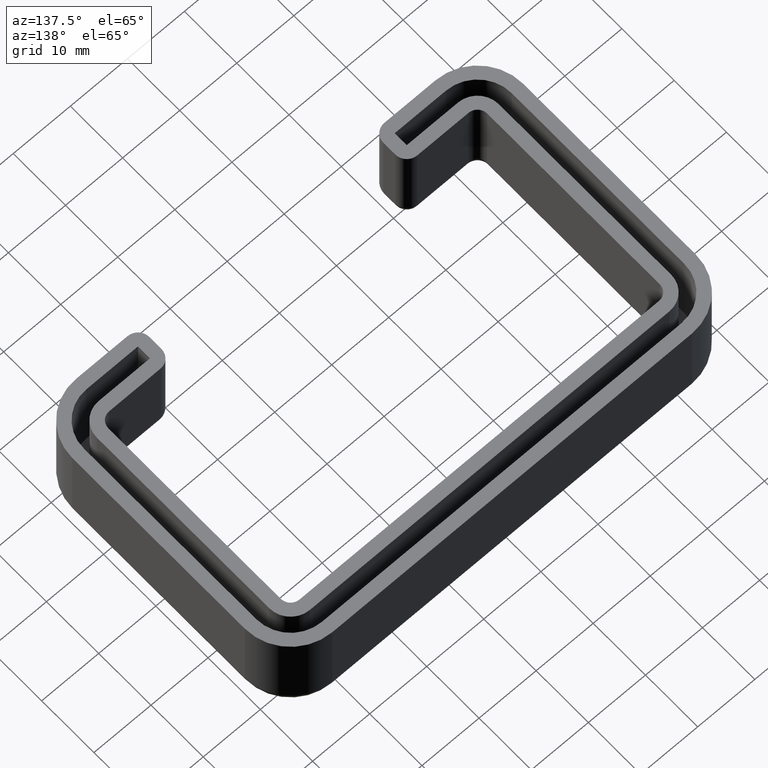
[diagram: clean part render]
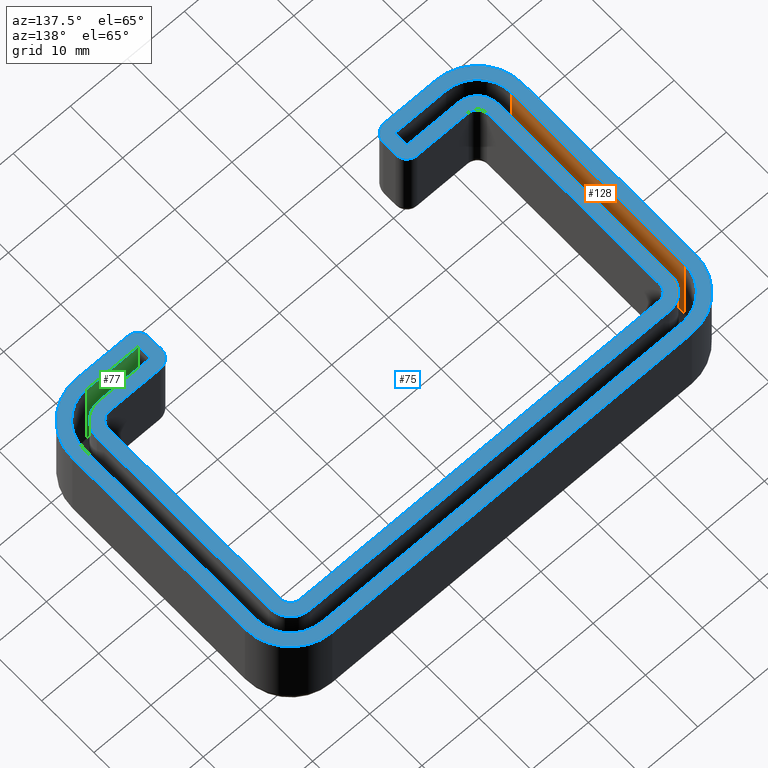
[diagram: same view with three faces highlighted in distinct colors, each labeled with its STEP entity id]
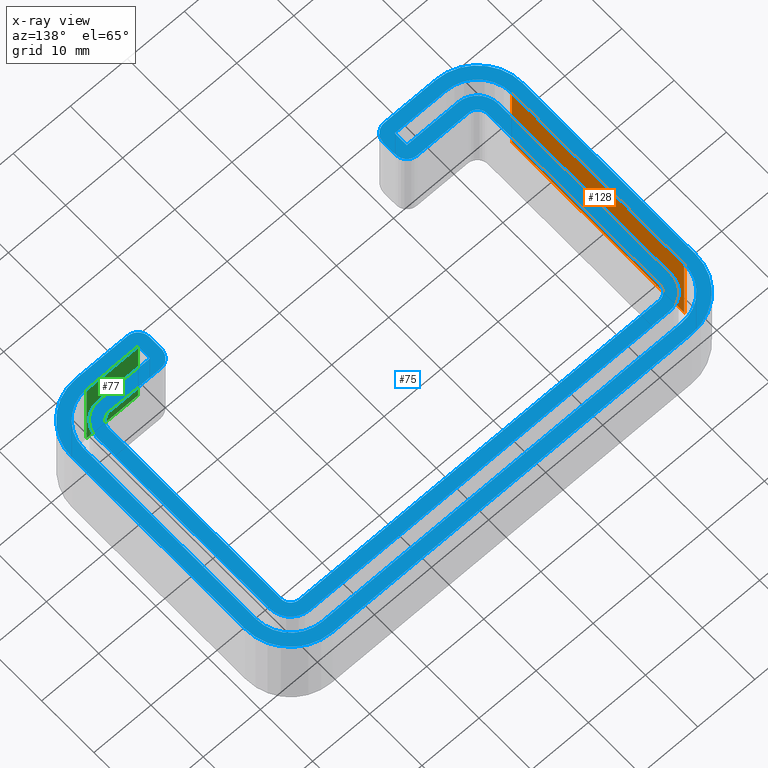
[diagram: x-ray of the same camera — body ghosted, the three highlighted faces saturated]
A machine part, auxiliary view with three faces highlighted in distinct colors.
The next image is the same camera in x-ray (body ghosted, the three faces saturated) — at least one of them is partly hidden behind the body in this view.
Their STEP definitions:

[orange] entity #128 — the highlighted planar face has unit normal (-1, 0, 0).
#128 = ADVANCED_FACE( '', ( #254 ), #255, .F. );
#254 = FACE_OUTER_BOUND( '', #397, .T. );
#255 = PLANE( '', #398 );
#397 = EDGE_LOOP( '', ( #872, #873, #874, #875 ) );
#398 = AXIS2_PLACEMENT_3D( '', #876, #877, #878 );
#872 = ORIENTED_EDGE( '', *, *, #1157, .T. );
#873 = ORIENTED_EDGE( '', *, *, #1065, .T. );
#874 = ORIENTED_EDGE( '', *, *, #1158, .T. );
#875 = ORIENTED_EDGE( '', *, *, #1034, .F. );
#876 = CARTESIAN_POINT( '', ( -37.5000000000000, 22.5000000000000, -15.0000000000000 ) );
#877 = DIRECTION( '', ( -1.00000000000000, 0.000000000000000, 0.000000000000000 ) );
#878 = DIRECTION( '', ( 0.000000000000000, 0.000000000000000, 1.00000000000000 ) );
#1034 = EDGE_CURVE( '', #1245, #1247, #1248, .T. );
#1065 = EDGE_CURVE( '', #1305, #1303, #1306, .T. );
#1157 = EDGE_CURVE( '', #1245, #1305, #1441, .T. );
#1158 = EDGE_CURVE( '', #1303, #1247, #1442, .T. );
#1245 = VERTEX_POINT( '', #1548 );
#1247 = VERTEX_POINT( '', #1550 );
#1248 = LINE( '', #1551, #1552 );
#1303 = VERTEX_POINT( '', #1627 );
#1305 = VERTEX_POINT( '', #1629 );
#1306 = LINE( '', #1630, #1631 );
#1441 = LINE( '', #1812, #1813 );
#1442 = LINE( '', #1814, #1815 );
#1548 = CARTESIAN_POINT( '', ( -37.5000000000000, -16.5000000000000, 1.73472347597681E-015 ) );
#1550 = CARTESIAN_POINT( '', ( -37.5000000000000, 16.5000000000000, 1.73472347597681E-015 ) );
#1551 = CARTESIAN_POINT( '', ( -37.5000000000000, -16.5000000000000, 1.73472347597681E-015 ) );
#1552 = VECTOR( '', #1916, 1000.00000000000 );
#1627 = CARTESIAN_POINT( '', ( -37.5000000000000, 16.5000000000000, -15.0000000000000 ) );
#1629 = CARTESIAN_POINT( '', ( -37.5000000000000, -16.5000000000000, -15.0000000000000 ) );
#1630 = CARTESIAN_POINT( '', ( -37.5000000000000, -22.5000000000000, -15.0000000000000 ) );
#1631 = VECTOR( '', #1967, 1000.00000000000 );
#1812 = CARTESIAN_POINT( '', ( -37.5000000000000, -16.5000000000000, -15.0000000000000 ) );
#1813 = VECTOR( '', #2149, 1000.00000000000 );
#1814 = CARTESIAN_POINT( '', ( -37.5000000000000, 16.5000000000000, -15.0000000000000 ) );
#1815 = VECTOR( '', #2150, 1000.00000000000 );
#1916 = DIRECTION( '', ( 0.000000000000000, 1.00000000000000, 0.000000000000000 ) );
#1967 = DIRECTION( '', ( 0.000000000000000, 1.00000000000000, 0.000000000000000 ) );
#2149 = DIRECTION( '', ( 0.000000000000000, 0.000000000000000, -1.00000000000000 ) );
#2150 = DIRECTION( '', ( 0.000000000000000, 0.000000000000000, 1.00000000000000 ) );

[blue] entity #75 — the highlighted planar face has unit normal (0, 0, -1).
#75 = ADVANCED_FACE( '', ( #147, #148 ), #149, .F. );
#147 = FACE_OUTER_BOUND( '', #290, .T. );
#148 = FACE_BOUND( '', #291, .T. );
#149 = PLANE( '', #292 );
#290 = EDGE_LOOP( '', ( #433, #434, #435, #436, #437, #438, #439, #440, #441, #442, #443, #444, #445, #446, #447, #448, #449, #450, #451, #452, #453, #454, #455, #456 ) );
#291 = EDGE_LOOP( '', ( #457, #458, #459, #460, #461, #462, #463, #464, #465, #466, #467, #468, #469, #470, #471, #472, #473, #474, #475, #476 ) );
#292 = AXIS2_PLACEMENT_3D( '', #477, #478, #479 );
#433 = ORIENTED_EDGE( '', *, *, #998, .F. );
#434 = ORIENTED_EDGE( '', *, *, #999, .T. );
#435 = ORIENTED_EDGE( '', *, *, #1000, .F. );
#436 = ORIENTED_EDGE( '', *, *, #1001, .T. );
#437 = ORIENTED_EDGE( '', *, *, #1002, .F. );
#438 = ORIENTED_EDGE( '', *, *, #1003, .F. );
#439 = ORIENTED_EDGE( '', *, *, #1004, .F. );
#440 = ORIENTED_EDGE( '', *, *, #1005, .F. );
#441 = ORIENTED_EDGE( '', *, *, #1006, .F. );
#442 = ORIENTED_EDGE( '', *, *, #1007, .F. );
#443 = ORIENTED_EDGE( '', *, *, #1008, .F. );
#444 = ORIENTED_EDGE( '', *, *, #1009, .F. );
#445 = ORIENTED_EDGE( '', *, *, #1010, .F. );
#446 = ORIENTED_EDGE( '', *, *, #1011, .T. );
#447 = ORIENTED_EDGE( '', *, *, #1012, .F. );
#448 = ORIENTED_EDGE( '', *, *, #1013, .T. );
#449 = ORIENTED_EDGE( '', *, *, #1014, .F. );
#450 = ORIENTED_EDGE( '', *, *, #1015, .F. );
#451 = ORIENTED_EDGE( '', *, *, #1016, .F. );
#452 = ORIENTED_EDGE( '', *, *, #1017, .F. );
#453 = ORIENTED_EDGE( '', *, *, #1018, .F. );
#454 = ORIENTED_EDGE( '', *, *, #1019, .F. );
#455 = ORIENTED_EDGE( '', *, *, #1020, .F. );
#456 = ORIENTED_EDGE( '', *, *, #1021, .F. );
#457 = ORIENTED_EDGE( '', *, *, #1022, .F. );
#458 = ORIENTED_EDGE( '', *, *, #1023, .F. );
#459 = ORIENTED_EDGE( '', *, *, #1024, .F. );
#460 = ORIENTED_EDGE( '', *, *, #1025, .F. );
#461 = ORIENTED_EDGE( '', *, *, #1026, .F. );
#462 = ORIENTED_EDGE( '', *, *, #1027, .F. );
#463 = ORIENTED_EDGE( '', *, *, #1028, .F. );
#464 = ORIENTED_EDGE( '', *, *, #1029, .F. );
#465 = ORIENTED_EDGE( '', *, *, #1030, .F. );
#466 = ORIENTED_EDGE( '', *, *, #1031, .F. );
#467 = ORIENTED_EDGE( '', *, *, #1032, .T. );
#468 = ORIENTED_EDGE( '', *, *, #1033, .T. );
#469 = ORIENTED_EDGE( '', *, *, #1034, .T. );
#470 = ORIENTED_EDGE( '', *, *, #1035, .T. );
#471 = ORIENTED_EDGE( '', *, *, #1036, .T. );
#472 = ORIENTED_EDGE( '', *, *, #1037, .T. );
#473 = ORIENTED_EDGE( '', *, *, #1038, .T. );
#474 = ORIENTED_EDGE( '', *, *, #1039, .T. );
#475 = ORIENTED_EDGE( '', *, *, #1040, .T. );
#476 = ORIENTED_EDGE( '', *, *, #1041, .F. );
#477 = CARTESIAN_POINT( '', ( -31.5000000000000, -16.5000000000000, 1.73472347597681E-015 ) );
#478 = DIRECTION( '', ( 0.000000000000000, 0.000000000000000, -1.00000000000000 ) );
#479 = DIRECTION( '', ( 1.00000000000000, 0.000000000000000, 0.000000000000000 ) );
#998 = EDGE_CURVE( '', #1174, #1175, #1176, .T. );
#999 = EDGE_CURVE( '', #1174, #1177, #1178, .F. );
#1000 = EDGE_CURVE( '', #1179, #1177, #1180, .T. );
#1001 = EDGE_CURVE( '', #1179, #1181, #1182, .F. );
#1002 = EDGE_CURVE( '', #1183, #1181, #1184, .T. );
#1003 = EDGE_CURVE( '', #1185, #1183, #1186, .T. );
#1004 = EDGE_CURVE( '', #1187, #1185, #1188, .T. );
#1005 = EDGE_CURVE( '', #1189, #1187, #1190, .T. );
#1006 = EDGE_CURVE( '', #1191, #1189, #1192, .T. );
#1007 = EDGE_CURVE( '', #1193, #1191, #1194, .T. );
#1008 = EDGE_CURVE( '', #1195, #1193, #1196, .T. );
#1009 = EDGE_CURVE( '', #1197, #1195, #1198, .T. );
#1010 = EDGE_CURVE( '', #1199, #1197, #1200, .T. );
#1011 = EDGE_CURVE( '', #1199, #1201, #1202, .F. );
#1012 = EDGE_CURVE( '', #1203, #1201, #1204, .T. );
#1013 = EDGE_CURVE( '', #1203, #1205, #1206, .F. );
#1014 = EDGE_CURVE( '', #1207, #1205, #1208, .T. );
#1015 = EDGE_CURVE( '', #1209, #1207, #1210, .T. );
#1016 = EDGE_CURVE( '', #1211, #1209, #1212, .T. );
#1017 = EDGE_CURVE( '', #1213, #1211, #1214, .T. );
#1018 = EDGE_CURVE( '', #1215, #1213, #1216, .T. );
#1019 = EDGE_CURVE( '', #1217, #1215, #1218, .T. );
#1020 = EDGE_CURVE( '', #1219, #1217, #1220, .T. );
#1021 = EDGE_CURVE( '', #1175, #1219, #1221, .T. );
#1022 = EDGE_CURVE( '', #1222, #1223, #1224, .T. );
#1023 = EDGE_CURVE( '', #1225, #1222, #1226, .T. );
#1024 = EDGE_CURVE( '', #1227, #1225, #1228, .T. );
#1025 = EDGE_CURVE( '', #1229, #1227, #1230, .T. );
#1026 = EDGE_CURVE( '', #1231, #1229, #1232, .T. );
#1027 = EDGE_CURVE( '', #1233, #1231, #1234, .T. );
#1028 = EDGE_CURVE( '', #1235, #1233, #1236, .T. );
#1029 = EDGE_CURVE( '', #1237, #1235, #1238, .T. );
#1030 = EDGE_CURVE( '', #1239, #1237, #1240, .T. );
#1031 = EDGE_CURVE( '', #1241, #1239, #1242, .T. );
#1032 = EDGE_CURVE( '', #1241, #1243, #1244, .T. );
#1033 = EDGE_CURVE( '', #1243, #1245, #1246, .T. );
#1034 = EDGE_CURVE( '', #1245, #1247, #1248, .T. );
#1035 = EDGE_CURVE( '', #1247, #1249, #1250, .T. );
#1036 = EDGE_CURVE( '', #1249, #1251, #1252, .T. );
#1037 = EDGE_CURVE( '', #1251, #1253, #1254, .T. );
#1038 = EDGE_CURVE( '', #1253, #1255, #1256, .T. );
#1039 = EDGE_CURVE( '', #1255, #1257, #1258, .T. );
#1040 = EDGE_CURVE( '', #1257, #1259, #1260, .T. );
#1041 = EDGE_CURVE( '', #1223, #1259, #1261, .T. );
#1174 = VERTEX_POINT( '', #1458 );
#1175 = VERTEX_POINT( '', #1459 );
#1176 = LINE( '', #1460, #1461 );
#1177 = VERTEX_POINT( '', #1462 );
#1178 = CIRCLE( '', #1463, 2.00000000000000 );
#1179 = VERTEX_POINT( '', #1464 );
#1180 = LINE( '', #1465, #1466 );
#1181 = VERTEX_POINT( '', #1467 );
#1182 = CIRCLE( '', #1468, 2.00000000000000 );
#1183 = VERTEX_POINT( '', #1469 );
#1184 = LINE( '', #1470, #1471 );
#1185 = VERTEX_POINT( '', #1472 );
#1186 = CIRCLE( '', #1473, 1.70000000000000 );
#1187 = VERTEX_POINT( '', #1474 );
#1188 = LINE( '', #1475, #1476 );
#1189 = VERTEX_POINT( '', #1477 );
#1190 = CIRCLE( '', #1478, 1.70000000000000 );
#1191 = VERTEX_POINT( '', #1479 );
#1192 = LINE( '', #1480, #1481 );
#1193 = VERTEX_POINT( '', #1482 );
#1194 = CIRCLE( '', #1483, 1.70000000000000 );
#1195 = VERTEX_POINT( '', #1484 );
#1196 = LINE( '', #1485, #1486 );
#1197 = VERTEX_POINT( '', #1487 );
#1198 = CIRCLE( '', #1488, 1.70000000000000 );
#1199 = VERTEX_POINT( '', #1489 );
#1200 = LINE( '', #1490, #1491 );
#1201 = VERTEX_POINT( '', #1492 );
#1202 = CIRCLE( '', #1493, 2.00000000000000 );
#1203 = VERTEX_POINT( '', #1494 );
#1204 = LINE( '', #1495, #1496 );
#1205 = VERTEX_POINT( '', #1497 );
#1206 = CIRCLE( '', #1498, 2.00000000000000 );
#1207 = VERTEX_POINT( '', #1499 );
#1208 = LINE( '', #1500, #1501 );
#1209 = VERTEX_POINT( '', #1502 );
#1210 = CIRCLE( '', #1503, 8.00000000000000 );
#1211 = VERTEX_POINT( '', #1504 );
#1212 = LINE( '', #1505, #1506 );
#1213 = VERTEX_POINT( '', #1507 );
#1214 = CIRCLE( '', #1508, 8.00000000000001 );
#1215 = VERTEX_POINT( '', #1509 );
#1216 = LINE( '', #1510, #1511 );
#1217 = VERTEX_POINT( '', #1512 );
#1218 = CIRCLE( '', #1513, 8.00000000000001 );
#1219 = VERTEX_POINT( '', #1514 );
#1220 = LINE( '', #1515, #1516 );
#1221 = CIRCLE( '', #1517, 8.00000000000000 );
#1222 = VERTEX_POINT( '', #1518 );
#1223 = VERTEX_POINT( '', #1519 );
#1224 = LINE( '', #1520, #1521 );
#1225 = VERTEX_POINT( '', #1522 );
#1226 = CIRCLE( '', #1523, 3.70000000000000 );
#1227 = VERTEX_POINT( '', #1524 );
#1228 = LINE( '', #1525, #1526 );
#1229 = VERTEX_POINT( '', #1527 );
#1230 = CIRCLE( '', #1528, 3.70000000000000 );
#1231 = VERTEX_POINT( '', #1529 );
#1232 = LINE( '', #1530, #1531 );
#1233 = VERTEX_POINT( '', #1532 );
#1234 = CIRCLE( '', #1533, 3.70000000000000 );
#1235 = VERTEX_POINT( '', #1534 );
#1236 = LINE( '', #1535, #1536 );
#1237 = VERTEX_POINT( '', #1537 );
#1238 = CIRCLE( '', #1538, 3.70000000000000 );
#1239 = VERTEX_POINT( '', #1539 );
#1240 = LINE( '', #1540, #1541 );
#1241 = VERTEX_POINT( '', #1542 );
#1242 = LINE( '', #1543, #1544 );
#1243 = VERTEX_POINT( '', #1545 );
#1244 = LINE( '', #1546, #1547 );
#1245 = VERTEX_POINT( '', #1548 );
#1246 = CIRCLE( '', #1549, 6.00000000000000 );
#1247 = VERTEX_POINT( '', #1550 );
#1248 = LINE( '', #1551, #1552 );
#1249 = VERTEX_POINT( '', #1553 );
#1250 = CIRCLE( '', #1554, 6.00000000000000 );
#1251 = VERTEX_POINT( '', #1555 );
#1252 = LINE( '', #1556, #1557 );
#1253 = VERTEX_POINT( '', #1558 );
#1254 = CIRCLE( '', #1559, 6.00000000000000 );
#1255 = VERTEX_POINT( '', #1560 );
#1256 = LINE( '', #1561, #1562 );
#1257 = VERTEX_POINT( '', #1563 );
#1258 = CIRCLE( '', #1564, 6.00000000000000 );
#1259 = VERTEX_POINT( '', #1565 );
#1260 = LINE( '', #1566, #1567 );
#1261 = LINE( '', #1568, #1569 );
#1458 = CARTESIAN_POINT( '', ( -22.5000000000000, -24.5000000000000, 1.73472347597681E-015 ) );
#1459 = CARTESIAN_POINT( '', ( -31.5000000000000, -24.5000000000000, 1.73472347597681E-015 ) );
#1460 = CARTESIAN_POINT( '', ( -20.5000000000000, -24.5000000000000, 1.73472347597681E-015 ) );
#1461 = VECTOR( '', #1846, 1000.00000000000 );
#1462 = CARTESIAN_POINT( '', ( -20.5000000000000, -22.5000000000000, 1.73472347597681E-015 ) );
#1463 = AXIS2_PLACEMENT_3D( '', #1847, #1848, #1849 );
#1464 = CARTESIAN_POINT( '', ( -20.5000000000000, -20.1999999999999, 1.73472347597681E-015 ) );
#1465 = CARTESIAN_POINT( '', ( -20.5000000000000, -18.1999999999999, 1.73472347597681E-015 ) );
#1466 = VECTOR( '', #1850, 1000.00000000000 );
#1467 = CARTESIAN_POINT( '', ( -22.5000000000000, -18.1999999999999, 1.73472347597681E-015 ) );
#1468 = AXIS2_PLACEMENT_3D( '', #1851, #1852, #1853 );
#1469 = CARTESIAN_POINT( '', ( -31.5000000000002, -18.1999999999999, 1.73472347597681E-015 ) );
#1470 = CARTESIAN_POINT( '', ( -31.5000000000002, -18.1999999999999, 1.73472347597681E-015 ) );
#1471 = VECTOR( '', #1854, 1000.00000000000 );
#1472 = CARTESIAN_POINT( '', ( -33.2000000000002, -16.4999999999999, 1.73472347597681E-015 ) );
#1473 = AXIS2_PLACEMENT_3D( '', #1855, #1856, #1857 );
#1474 = CARTESIAN_POINT( '', ( -33.2000000000002, 16.5000000000001, 1.73472347597681E-015 ) );
#1475 = CARTESIAN_POINT( '', ( -33.2000000000002, 16.5000000000001, 1.73472347597681E-015 ) );
#1476 = VECTOR( '', #1858, 1000.00000000000 );
#1477 = CARTESIAN_POINT( '', ( -31.5000000000002, 18.2000000000001, 1.73472347597681E-015 ) );
#1478 = AXIS2_PLACEMENT_3D( '', #1859, #1860, #1861 );
#1479 = CARTESIAN_POINT( '', ( 31.4999999999998, 18.2000000000001, 1.73472347597681E-015 ) );
#1480 = CARTESIAN_POINT( '', ( 31.4999999999998, 18.2000000000001, 1.73472347597681E-015 ) );
#1481 = VECTOR( '', #1862, 1000.00000000000 );
#1482 = CARTESIAN_POINT( '', ( 33.1999999999998, 16.5000000000001, 1.73472347597681E-015 ) );
#1483 = AXIS2_PLACEMENT_3D( '', #1863, #1864, #1865 );
#1484 = CARTESIAN_POINT( '', ( 33.1999999999998, -16.4999999999999, 1.73472347597681E-015 ) );
#1485 = CARTESIAN_POINT( '', ( 33.1999999999998, -16.4999999999999, 1.73472347597681E-015 ) );
#1486 = VECTOR( '', #1866, 1000.00000000000 );
#1487 = CARTESIAN_POINT( '', ( 31.4999999999998, -18.1999999999999, 1.73472347597681E-015 ) );
#1488 = AXIS2_PLACEMENT_3D( '', #1867, #1868, #1869 );
#1489 = CARTESIAN_POINT( '', ( 22.5000000000000, -18.1999999999999, 1.73472347597681E-015 ) );
#1490 = CARTESIAN_POINT( '', ( 20.5000000000000, -18.1999999999999, 1.73472347597681E-015 ) );
#1491 = VECTOR( '', #1870, 1000.00000000000 );
#1492 = CARTESIAN_POINT( '', ( 20.5000000000000, -20.1999999999999, 1.73472347597681E-015 ) );
#1493 = AXIS2_PLACEMENT_3D( '', #1871, #1872, #1873 );
#1494 = CARTESIAN_POINT( '', ( 20.5000000000000, -22.5000000000000, 1.73472347597681E-015 ) );
#1495 = CARTESIAN_POINT( '', ( 20.5000000000000, -24.5000000000000, 1.73472347597681E-015 ) );
#1496 = VECTOR( '', #1874, 1000.00000000000 );
#1497 = CARTESIAN_POINT( '', ( 22.5000000000000, -24.5000000000000, 1.73472347597681E-015 ) );
#1498 = AXIS2_PLACEMENT_3D( '', #1875, #1876, #1877 );
#1499 = CARTESIAN_POINT( '', ( 31.5000000000000, -24.5000000000000, 1.73472347597681E-015 ) );
#1500 = CARTESIAN_POINT( '', ( 31.5000000000000, -24.5000000000000, 1.73472347597681E-015 ) );
#1501 = VECTOR( '', #1878, 1000.00000000000 );
#1502 = CARTESIAN_POINT( '', ( 39.5000000000000, -16.5000000000000, 1.73472347597681E-015 ) );
#1503 = AXIS2_PLACEMENT_3D( '', #1879, #1880, #1881 );
#1504 = CARTESIAN_POINT( '', ( 39.5000000000000, 16.5000000000000, 1.73472347597681E-015 ) );
#1505 = CARTESIAN_POINT( '', ( 39.5000000000000, 16.5000000000000, 1.73472347597681E-015 ) );
#1506 = VECTOR( '', #1882, 1000.00000000000 );
#1507 = CARTESIAN_POINT( '', ( 31.5000000000000, 24.5000000000000, 1.73472347597681E-015 ) );
#1508 = AXIS2_PLACEMENT_3D( '', #1883, #1884, #1885 );
#1509 = CARTESIAN_POINT( '', ( -31.5000000000000, 24.5000000000000, 1.73472347597681E-015 ) );
#1510 = CARTESIAN_POINT( '', ( -31.5000000000000, 24.5000000000000, 1.73472347597681E-015 ) );
#1511 = VECTOR( '', #1886, 1000.00000000000 );
#1512 = CARTESIAN_POINT( '', ( -39.5000000000000, 16.5000000000000, 1.73472347597681E-015 ) );
#1513 = AXIS2_PLACEMENT_3D( '', #1887, #1888, #1889 );
#1514 = CARTESIAN_POINT( '', ( -39.5000000000000, -16.5000000000000, 1.73472347597681E-015 ) );
#1515 = CARTESIAN_POINT( '', ( -39.5000000000000, -16.5000000000000, 1.73472347597681E-015 ) );
#1516 = VECTOR( '', #1890, 1000.00000000000 );
#1517 = AXIS2_PLACEMENT_3D( '', #1891, #1892, #1893 );
#1518 = CARTESIAN_POINT( '', ( 31.4999999999998, -20.1999999999999, 0.000000000000000 ) );
#1519 = CARTESIAN_POINT( '', ( 22.5000000000000, -20.1999999999999, 0.000000000000000 ) );
#1520 = CARTESIAN_POINT( '', ( -31.5000000000000, -20.1999999999999, 1.73472347597681E-015 ) );
#1521 = VECTOR( '', #1894, 1000.00000000000 );
#1522 = CARTESIAN_POINT( '', ( 35.1999999999998, -16.4999999999999, 0.000000000000000 ) );
#1523 = AXIS2_PLACEMENT_3D( '', #1895, #1896, #1897 );
#1524 = CARTESIAN_POINT( '', ( 35.1999999999998, 16.5000000000001, 0.000000000000000 ) );
#1525 = CARTESIAN_POINT( '', ( 35.1999999999998, -16.5000000000000, 1.73472347597681E-015 ) );
#1526 = VECTOR( '', #1898, 1000.00000000000 );
#1527 = CARTESIAN_POINT( '', ( 31.4999999999998, 20.2000000000001, 0.000000000000000 ) );
#1528 = AXIS2_PLACEMENT_3D( '', #1899, #1900, #1901 );
#1529 = CARTESIAN_POINT( '', ( -31.5000000000002, 20.2000000000001, 0.000000000000000 ) );
#1530 = CARTESIAN_POINT( '', ( -31.5000000000000, 20.2000000000001, 1.73472347597681E-015 ) );
#1531 = VECTOR( '', #1902, 1000.00000000000 );
#1532 = CARTESIAN_POINT( '', ( -35.2000000000002, 16.5000000000001, 0.000000000000000 ) );
#1533 = AXIS2_PLACEMENT_3D( '', #1903, #1904, #1905 );
#1534 = CARTESIAN_POINT( '', ( -35.2000000000002, -16.4999999999999, 0.000000000000000 ) );
#1535 = CARTESIAN_POINT( '', ( -35.2000000000002, -16.5000000000000, 1.73472347597681E-015 ) );
#1536 = VECTOR( '', #1906, 1000.00000000000 );
#1537 = CARTESIAN_POINT( '', ( -31.5000000000002, -20.1999999999999, 0.000000000000000 ) );
#1538 = AXIS2_PLACEMENT_3D( '', #1907, #1908, #1909 );
#1539 = CARTESIAN_POINT( '', ( -22.5000000000000, -20.1999999999999, 0.000000000000000 ) );
#1540 = CARTESIAN_POINT( '', ( -31.5000000000000, -20.1999999999999, 1.73472347597681E-015 ) );
#1541 = VECTOR( '', #1910, 1000.00000000000 );
#1542 = CARTESIAN_POINT( '', ( -22.5000000000000, -22.5000000000000, 0.000000000000000 ) );
#1543 = CARTESIAN_POINT( '', ( -22.5000000000000, -16.5000000000000, 1.73472347597681E-015 ) );
#1544 = VECTOR( '', #1911, 1000.00000000000 );
#1545 = CARTESIAN_POINT( '', ( -31.5000000000000, -22.5000000000000, 1.73472347597681E-015 ) );
#1546 = CARTESIAN_POINT( '', ( -31.5000000000000, -22.5000000000000, 1.73472347597681E-015 ) );
#1547 = VECTOR( '', #1912, 1000.00000000000 );
#1548 = CARTESIAN_POINT( '', ( -37.5000000000000, -16.5000000000000, 1.73472347597681E-015 ) );
#1549 = AXIS2_PLACEMENT_3D( '', #1913, #1914, #1915 );
#1550 = CARTESIAN_POINT( '', ( -37.5000000000000, 16.5000000000000, 1.73472347597681E-015 ) );
#1551 = CARTESIAN_POINT( '', ( -37.5000000000000, -16.5000000000000, 1.73472347597681E-015 ) );
#1552 = VECTOR( '', #1916, 1000.00000000000 );
#1553 = CARTESIAN_POINT( '', ( -31.5000000000000, 22.5000000000000, 1.73472347597681E-015 ) );
#1554 = AXIS2_PLACEMENT_3D( '', #1917, #1918, #1919 );
#1555 = CARTESIAN_POINT( '', ( 31.5000000000000, 22.5000000000000, 1.73472347597681E-015 ) );
#1556 = CARTESIAN_POINT( '', ( -31.5000000000000, 22.5000000000000, 1.73472347597681E-015 ) );
#1557 = VECTOR( '', #1920, 1000.00000000000 );
#1558 = CARTESIAN_POINT( '', ( 37.5000000000000, 16.5000000000000, 1.73472347597681E-015 ) );
#1559 = AXIS2_PLACEMENT_3D( '', #1921, #1922, #1923 );
#1560 = CARTESIAN_POINT( '', ( 37.5000000000000, -16.5000000000000, 1.73472347597681E-015 ) );
#1561 = CARTESIAN_POINT( '', ( 37.5000000000000, -16.5000000000000, 1.73472347597681E-015 ) );
#1562 = VECTOR( '', #1924, 1000.00000000000 );
#1563 = CARTESIAN_POINT( '', ( 31.5000000000000, -22.5000000000000, 1.73472347597681E-015 ) );
#1564 = AXIS2_PLACEMENT_3D( '', #1925, #1926, #1927 );
#1565 = CARTESIAN_POINT( '', ( 22.5000000000000, -22.5000000000000, 0.000000000000000 ) );
#1566 = CARTESIAN_POINT( '', ( -31.5000000000000, -22.5000000000000, 1.73472347597681E-015 ) );
#1567 = VECTOR( '', #1928, 1000.00000000000 );
#1568 = CARTESIAN_POINT( '', ( 22.5000000000000, -16.5000000000000, 1.73472347597681E-015 ) );
#1569 = VECTOR( '', #1929, 1000.00000000000 );
#1846 = DIRECTION( '', ( -1.00000000000000, 0.000000000000000, 0.000000000000000 ) );
#1847 = CARTESIAN_POINT( '', ( -22.5000000000000, -22.5000000000000, 1.73472347597681E-015 ) );
#1848 = DIRECTION( '', ( 0.000000000000000, 0.000000000000000, -1.00000000000000 ) );
#1849 = DIRECTION( '', ( -1.00000000000000, 0.000000000000000, 0.000000000000000 ) );
#1850 = DIRECTION( '', ( 0.000000000000000, -1.00000000000000, 0.000000000000000 ) );
#1851 = CARTESIAN_POINT( '', ( -22.5000000000000, -20.1999999999999, 1.73472347597681E-015 ) );
#1852 = DIRECTION( '', ( 0.000000000000000, 0.000000000000000, -1.00000000000000 ) );
#1853 = DIRECTION( '', ( -1.00000000000000, 0.000000000000000, 0.000000000000000 ) );
#1854 = DIRECTION( '', ( 1.00000000000000, 0.000000000000000, 0.000000000000000 ) );
#1855 = CARTESIAN_POINT( '', ( -31.5000000000002, -16.4999999999999, 1.73472347597681E-015 ) );
#1856 = DIRECTION( '', ( 0.000000000000000, 0.000000000000000, 1.00000000000000 ) );
#1857 = DIRECTION( '', ( -0.707106781186547, -0.707106781186548, 0.000000000000000 ) );
#1858 = DIRECTION( '', ( 0.000000000000000, -1.00000000000000, 0.000000000000000 ) );
#1859 = CARTESIAN_POINT( '', ( -31.5000000000002, 16.5000000000001, 1.73472347597681E-015 ) );
#1860 = DIRECTION( '', ( 0.000000000000000, 0.000000000000000, 1.00000000000000 ) );
#1861 = DIRECTION( '', ( -0.707106781186545, 0.707106781186550, 0.000000000000000 ) );
#1862 = DIRECTION( '', ( -1.00000000000000, 0.000000000000000, 0.000000000000000 ) );
#1863 = CARTESIAN_POINT( '', ( 31.4999999999998, 16.5000000000001, 1.73472347597681E-015 ) );
#1864 = DIRECTION( '', ( 0.000000000000000, 0.000000000000000, 1.00000000000000 ) );
#1865 = DIRECTION( '', ( 0.707106781186545, 0.707106781186550, 0.000000000000000 ) );
#1866 = DIRECTION( '', ( 0.000000000000000, 1.00000000000000, 0.000000000000000 ) );
#1867 = CARTESIAN_POINT( '', ( 31.4999999999998, -16.4999999999999, 1.73472347597681E-015 ) );
#1868 = DIRECTION( '', ( 0.000000000000000, 0.000000000000000, 1.00000000000000 ) );
#1869 = DIRECTION( '', ( 0.707106781186547, -0.707106781186548, 0.000000000000000 ) );
#1870 = DIRECTION( '', ( 1.00000000000000, 0.000000000000000, 0.000000000000000 ) );
#1871 = CARTESIAN_POINT( '', ( 22.5000000000000, -20.1999999999999, 1.73472347597681E-015 ) );
#1872 = DIRECTION( '', ( 0.000000000000000, 0.000000000000000, -1.00000000000000 ) );
#1873 = DIRECTION( '', ( -1.00000000000000, 0.000000000000000, 0.000000000000000 ) );
#1874 = DIRECTION( '', ( 0.000000000000000, 1.00000000000000, 0.000000000000000 ) );
#1875 = CARTESIAN_POINT( '', ( 22.5000000000000, -22.5000000000000, 1.73472347597681E-015 ) );
#1876 = DIRECTION( '', ( 0.000000000000000, 0.000000000000000, -1.00000000000000 ) );
#1877 = DIRECTION( '', ( -1.00000000000000, 0.000000000000000, 0.000000000000000 ) );
#1878 = DIRECTION( '', ( -1.00000000000000, 0.000000000000000, 0.000000000000000 ) );
#1879 = CARTESIAN_POINT( '', ( 31.5000000000000, -16.5000000000000, 1.73472347597681E-015 ) );
#1880 = DIRECTION( '', ( 0.000000000000000, 0.000000000000000, -1.00000000000000 ) );
#1881 = DIRECTION( '', ( 0.707106781186547, -0.707106781186548, 0.000000000000000 ) );
#1882 = DIRECTION( '', ( 0.000000000000000, -1.00000000000000, 0.000000000000000 ) );
#1883 = CARTESIAN_POINT( '', ( 31.5000000000000, 16.5000000000000, 1.73472347597681E-015 ) );
#1884 = DIRECTION( '', ( 0.000000000000000, 0.000000000000000, -1.00000000000000 ) );
#1885 = DIRECTION( '', ( 0.707106781186547, 0.707106781186548, 0.000000000000000 ) );
#1886 = DIRECTION( '', ( 1.00000000000000, 0.000000000000000, 0.000000000000000 ) );
#1887 = CARTESIAN_POINT( '', ( -31.5000000000000, 16.5000000000000, 1.73472347597681E-015 ) );
#1888 = DIRECTION( '', ( 0.000000000000000, 0.000000000000000, -1.00000000000000 ) );
#1889 = DIRECTION( '', ( -0.707106781186547, 0.707106781186548, 0.000000000000000 ) );
#1890 = DIRECTION( '', ( 0.000000000000000, 1.00000000000000, 0.000000000000000 ) );
#1891 = CARTESIAN_POINT( '', ( -31.5000000000000, -16.5000000000000, 1.73472347597681E-015 ) );
#1892 = DIRECTION( '', ( 0.000000000000000, 0.000000000000000, -1.00000000000000 ) );
#1893 = DIRECTION( '', ( -0.707106781186547, -0.707106781186548, 0.000000000000000 ) );
#1894 = DIRECTION( '', ( -1.00000000000000, 0.000000000000000, 0.000000000000000 ) );
#1895 = CARTESIAN_POINT( '', ( 31.4999999999998, -16.4999999999999, 0.000000000000000 ) );
#1896 = DIRECTION( '', ( 0.000000000000000, 0.000000000000000, -1.00000000000000 ) );
#1897 = DIRECTION( '', ( -1.00000000000000, 0.000000000000000, 0.000000000000000 ) );
#1898 = DIRECTION( '', ( 0.000000000000000, -1.00000000000000, 0.000000000000000 ) );
#1899 = CARTESIAN_POINT( '', ( 31.4999999999998, 16.5000000000001, 0.000000000000000 ) );
#1900 = DIRECTION( '', ( 0.000000000000000, 0.000000000000000, -1.00000000000000 ) );
#1901 = DIRECTION( '', ( -1.00000000000000, 0.000000000000000, 0.000000000000000 ) );
#1902 = DIRECTION( '', ( 1.00000000000000, 0.000000000000000, 0.000000000000000 ) );
#1903 = CARTESIAN_POINT( '', ( -31.5000000000002, 16.5000000000001, 0.000000000000000 ) );
#1904 = DIRECTION( '', ( 0.000000000000000, 0.000000000000000, -1.00000000000000 ) );
#1905 = DIRECTION( '', ( -1.00000000000000, 0.000000000000000, 0.000000000000000 ) );
#1906 = DIRECTION( '', ( 0.000000000000000, 1.00000000000000, 0.000000000000000 ) );
#1907 = CARTESIAN_POINT( '', ( -31.5000000000002, -16.4999999999999, 0.000000000000000 ) );
#1908 = DIRECTION( '', ( 0.000000000000000, 0.000000000000000, -1.00000000000000 ) );
#1909 = DIRECTION( '', ( -1.00000000000000, 0.000000000000000, 0.000000000000000 ) );
#1910 = DIRECTION( '', ( -1.00000000000000, 0.000000000000000, 0.000000000000000 ) );
#1911 = DIRECTION( '', ( 0.000000000000000, 1.00000000000000, 0.000000000000000 ) );
#1912 = DIRECTION( '', ( -1.00000000000000, 0.000000000000000, 0.000000000000000 ) );
#1913 = CARTESIAN_POINT( '', ( -31.5000000000000, -16.5000000000000, 1.73472347597681E-015 ) );
#1914 = DIRECTION( '', ( 0.000000000000000, 0.000000000000000, -1.00000000000000 ) );
#1915 = DIRECTION( '', ( -1.00000000000000, 0.000000000000000, 0.000000000000000 ) );
#1916 = DIRECTION( '', ( 0.000000000000000, 1.00000000000000, 0.000000000000000 ) );
#1917 = CARTESIAN_POINT( '', ( -31.5000000000000, 16.5000000000000, 1.73472347597681E-015 ) );
#1918 = DIRECTION( '', ( 0.000000000000000, 0.000000000000000, -1.00000000000000 ) );
#1919 = DIRECTION( '', ( -1.00000000000000, 0.000000000000000, 0.000000000000000 ) );
#1920 = DIRECTION( '', ( 1.00000000000000, 0.000000000000000, 0.000000000000000 ) );
#1921 = CARTESIAN_POINT( '', ( 31.5000000000000, 16.5000000000000, 1.73472347597681E-015 ) );
#1922 = DIRECTION( '', ( 0.000000000000000, 0.000000000000000, -1.00000000000000 ) );
#1923 = DIRECTION( '', ( -1.00000000000000, 0.000000000000000, 0.000000000000000 ) );
#1924 = DIRECTION( '', ( 0.000000000000000, -1.00000000000000, 0.000000000000000 ) );
#1925 = CARTESIAN_POINT( '', ( 31.5000000000000, -16.5000000000000, 1.73472347597681E-015 ) );
#1926 = DIRECTION( '', ( 0.000000000000000, 0.000000000000000, -1.00000000000000 ) );
#1927 = DIRECTION( '', ( -1.00000000000000, 0.000000000000000, 0.000000000000000 ) );
#1928 = DIRECTION( '', ( -1.00000000000000, 0.000000000000000, 0.000000000000000 ) );
#1929 = DIRECTION( '', ( 0.000000000000000, -1.00000000000000, 0.000000000000000 ) );

[green] entity #77 — the highlighted planar face has unit normal (0, -1, 0).
#77 = ADVANCED_FACE( '', ( #152 ), #153, .F. );
#152 = FACE_OUTER_BOUND( '', #295, .T. );
#153 = PLANE( '', #296 );
#295 = EDGE_LOOP( '', ( #487, #488, #489, #490 ) );
#296 = AXIS2_PLACEMENT_3D( '', #491, #492, #493 );
#487 = ORIENTED_EDGE( '', *, *, #1045, .T. );
#488 = ORIENTED_EDGE( '', *, *, #1046, .T. );
#489 = ORIENTED_EDGE( '', *, *, #1047, .F. );
#490 = ORIENTED_EDGE( '', *, *, #1040, .F. );
#491 = CARTESIAN_POINT( '', ( -37.5000000000000, -22.5000000000000, -15.0000000000000 ) );
#492 = DIRECTION( '', ( 0.000000000000000, -1.00000000000000, 0.000000000000000 ) );
#493 = DIRECTION( '', ( 0.000000000000000, 0.000000000000000, -1.00000000000000 ) );
#1040 = EDGE_CURVE( '', #1257, #1259, #1260, .T. );
#1045 = EDGE_CURVE( '', #1257, #1267, #1268, .T. );
#1046 = EDGE_CURVE( '', #1267, #1269, #1270, .T. );
#1047 = EDGE_CURVE( '', #1259, #1269, #1271, .T. );
#1257 = VERTEX_POINT( '', #1563 );
#1259 = VERTEX_POINT( '', #1565 );
#1260 = LINE( '', #1566, #1567 );
#1267 = VERTEX_POINT( '', #1578 );
#1268 = LINE( '', #1579, #1580 );
#1269 = VERTEX_POINT( '', #1581 );
#1270 = LINE( '', #1582, #1583 );
#1271 = LINE( '', #1584, #1585 );
#1563 = CARTESIAN_POINT( '', ( 31.5000000000000, -22.5000000000000, 1.73472347597681E-015 ) );
#1565 = CARTESIAN_POINT( '', ( 22.5000000000000, -22.5000000000000, 0.000000000000000 ) );
#1566 = CARTESIAN_POINT( '', ( -31.5000000000000, -22.5000000000000, 1.73472347597681E-015 ) );
#1567 = VECTOR( '', #1928, 1000.00000000000 );
#1578 = CARTESIAN_POINT( '', ( 31.5000000000000, -22.5000000000000, -15.0000000000000 ) );
#1579 = CARTESIAN_POINT( '', ( 31.5000000000000, -22.5000000000000, -15.0000000000000 ) );
#1580 = VECTOR( '', #1933, 1000.00000000000 );
#1581 = CARTESIAN_POINT( '', ( 22.5000000000000, -22.5000000000000, -15.0000000000000 ) );
#1582 = CARTESIAN_POINT( '', ( 37.5000000000000, -22.5000000000000, -15.0000000000000 ) );
#1583 = VECTOR( '', #1934, 1000.00000000000 );
#1584 = CARTESIAN_POINT( '', ( 22.5000000000000, -22.5000000000000, 35.0000000000000 ) );
#1585 = VECTOR( '', #1935, 1000.00000000000 );
#1928 = DIRECTION( '', ( -1.00000000000000, 0.000000000000000, 0.000000000000000 ) );
#1933 = DIRECTION( '', ( 0.000000000000000, 0.000000000000000, -1.00000000000000 ) );
#1934 = DIRECTION( '', ( -1.00000000000000, 0.000000000000000, 0.000000000000000 ) );
#1935 = DIRECTION( '', ( 0.000000000000000, 0.000000000000000, -1.00000000000000 ) );